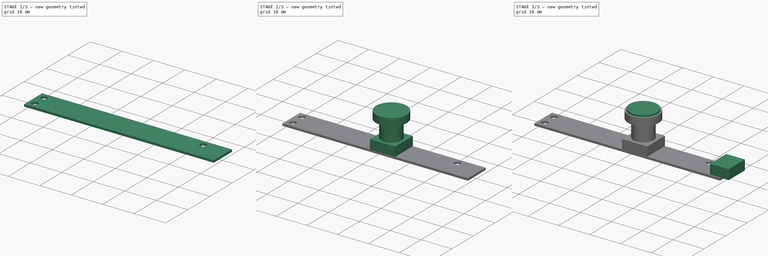
[diagram: build sequence overview — one tinted view per stage of 3, left to right]
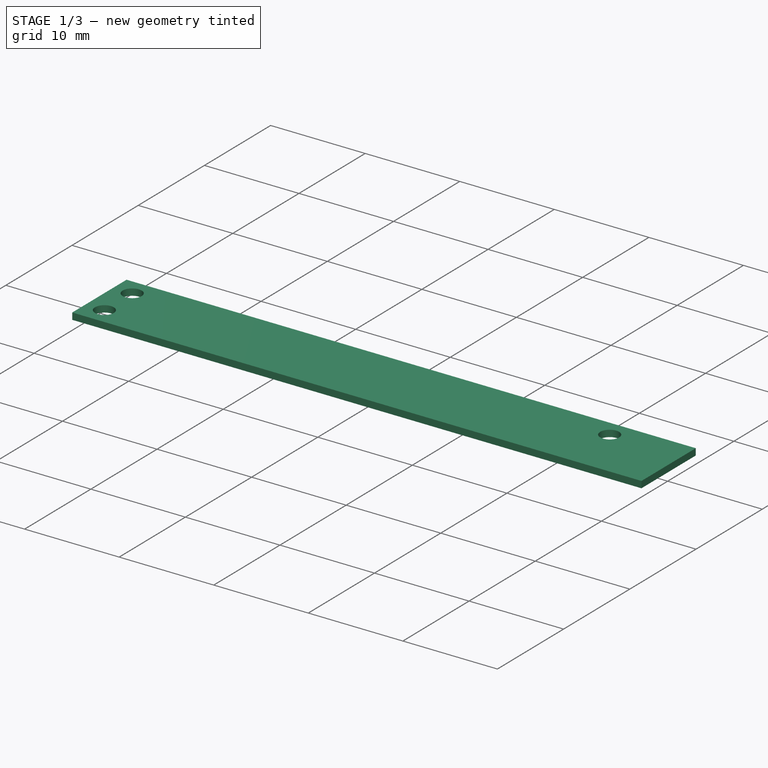
[diagram: stage 1 of 3 — iso view after this stage's code; geometry added in this stage tinted green]
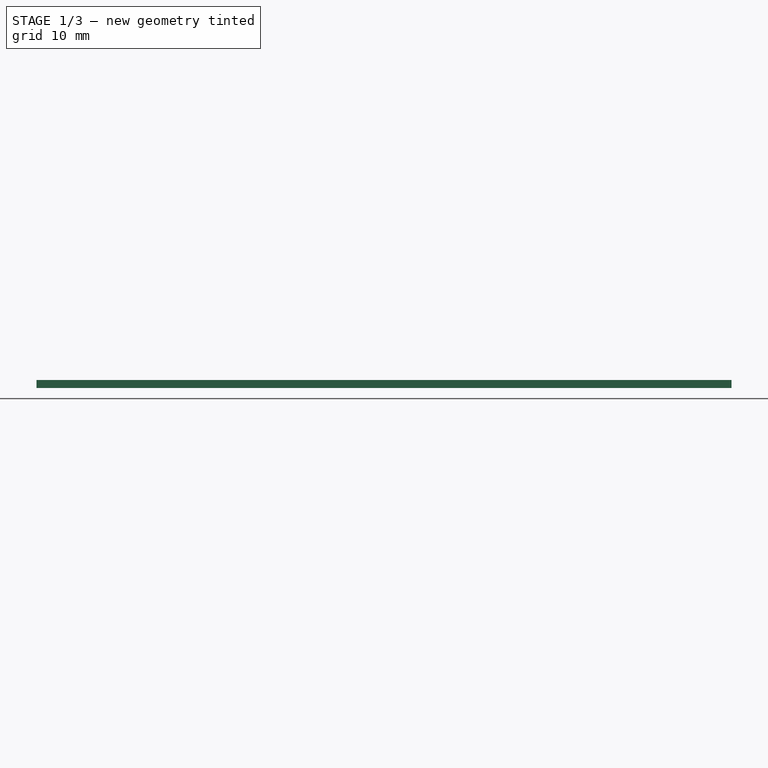
[diagram: stage 1 of 3 — front view after this stage's code; geometry added in this stage tinted green]
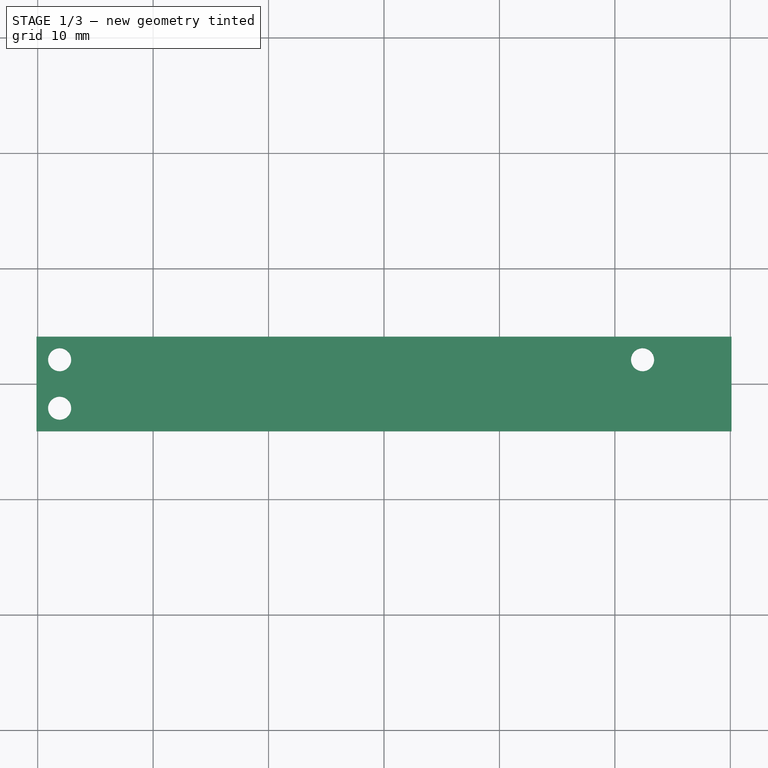
[diagram: stage 1 of 3 — top view after this stage's code; geometry added in this stage tinted green]
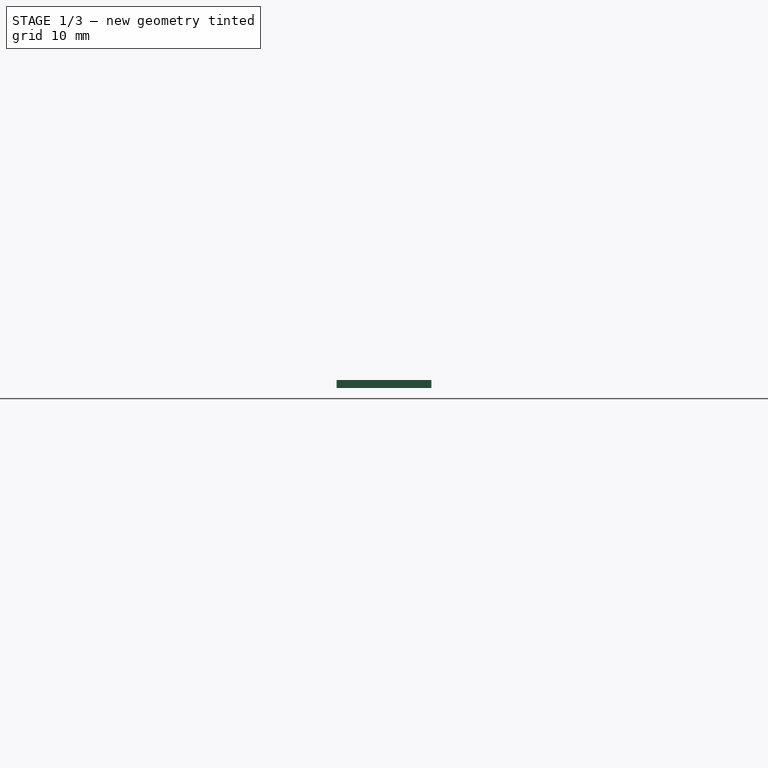
[diagram: stage 1 of 3 — right view after this stage's code; geometry added in this stage tinted green]
FCSTD DOCUMENT  (FreeCAD 0.16R4928 (Git))
Label: delock_95953
License: All rights reserved
LicenseURL: http://en.wikipedia.org/wiki/All_rights_reserved
objects: Sketcher::SketchObject×7, PartDesign::Pad×6, PartDesign::Pocket×1
note: 21 computed .brp shape members not serialized (recipe doc carries the construction recipe); baked Part::Feature solids carry a one-line shape summary decoded from their .brp

FEATURE [Sketcher::SketchObject] Sketch
  sketch-geometry (4):
    g0: LineSegment StartX=-30.1 StartY=4.1 StartZ=0 EndX=30.1 EndY=4.1 EndZ=0
    g1: LineSegment StartX=30.1 StartY=4.1 StartZ=0 EndX=30.1 EndY=-4.1 EndZ=0
    g2: LineSegment StartX=30.1 StartY=-4.1 StartZ=0 EndX=-30.1 EndY=-4.1 EndZ=0
    g3: LineSegment StartX=-30.1 StartY=-4.1 StartZ=0 EndX=-30.1 EndY=4.1 EndZ=0
  constraints (12):
    c: Coincident(g0,g1)
    c: Coincident(g1,g2)
    c: Coincident(g2,g3)
    c: Coincident(g3,g0)
    c: Horizontal(g0)
    c: Horizontal(g2)
    c: Vertical(g1)
    c: Vertical(g3)
    c: Distance(g3) = 8.2
    c: Distance(g0) = 60.2
    c: DistanceY(g-1,g0) = 4.1
    c: DistanceX(g-1,g0) = 30.1
FEATURE [PartDesign::Pad] Pad
  Length = 0.7
  Length2 = 100
  Sketch = -> Sketch
  Type = 0
FEATURE [Sketcher::SketchObject] Sketch001
  ExternalGeometry = -> [Pad]
  Placement = pos=(0,0,0.7) rot=(0,0,1;0rad)
  Support = -> Pad [Face6]
  sketch-geometry (3):
    g0: Circle CenterX=-28.1 CenterY=2.1 CenterZ=0 NormalX=0 NormalY=0 NormalZ=1 Radius=1
    g1: Circle CenterX=-28.1 CenterY=-2.1 CenterZ=0 NormalX=0 NormalY=0 NormalZ=1 Radius=1
    g2: Circle CenterX=22.4 CenterY=2.1 CenterZ=0 NormalX=0 NormalY=0 NormalZ=1 Radius=1
  constraints (9):
    c: Radius(g0) = 1
    c: DistanceY(g-4,g0) = -2
    c: DistanceX(g-4,g0) = 2
    c: Radius(g1) = 1
    c: DistanceY(g1,g-4) = -2
    c: DistanceX(g1,g-4) = -2
    c: DistanceX(g-3,g2) = -7.7
    c: DistanceY(g2,g-3) = 2
    c: Equal(g0,g2)
FEATURE [PartDesign::Pocket] Pocket
  Length = 5
  Sketch = -> Sketch001
  Type = 1
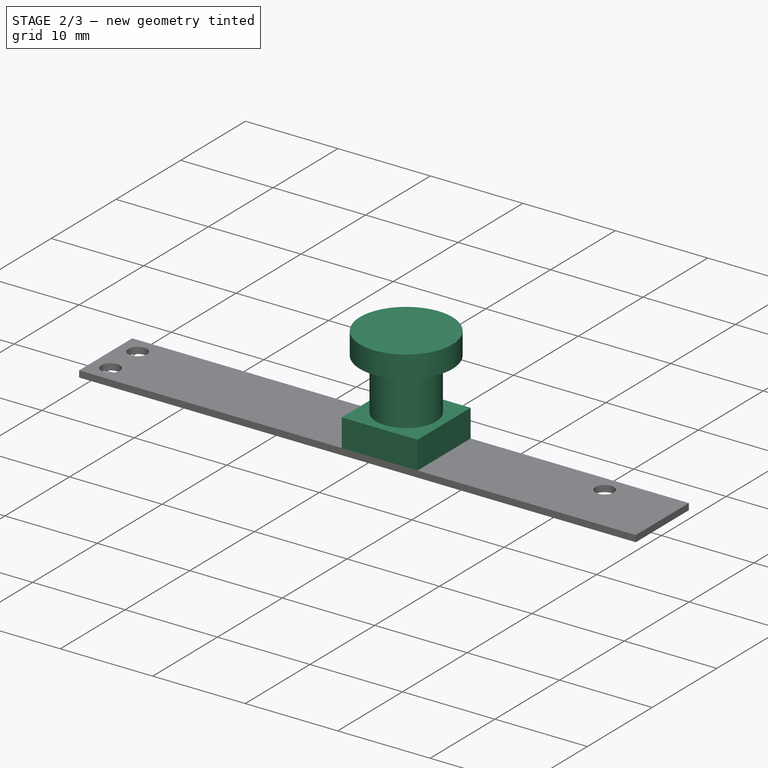
[diagram: stage 2 of 3 — iso view after this stage's code; geometry added in this stage tinted green]
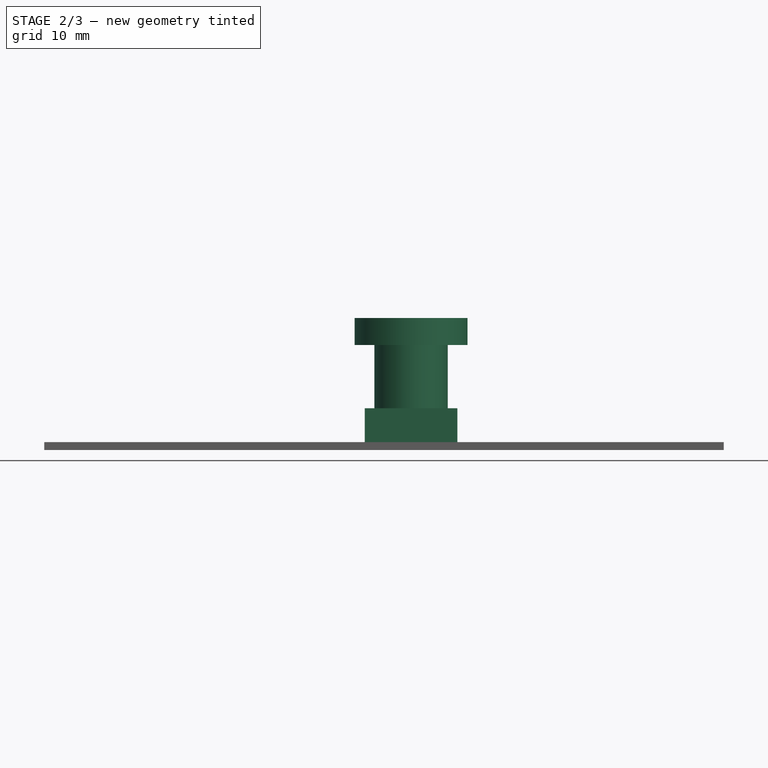
[diagram: stage 2 of 3 — front view after this stage's code; geometry added in this stage tinted green]
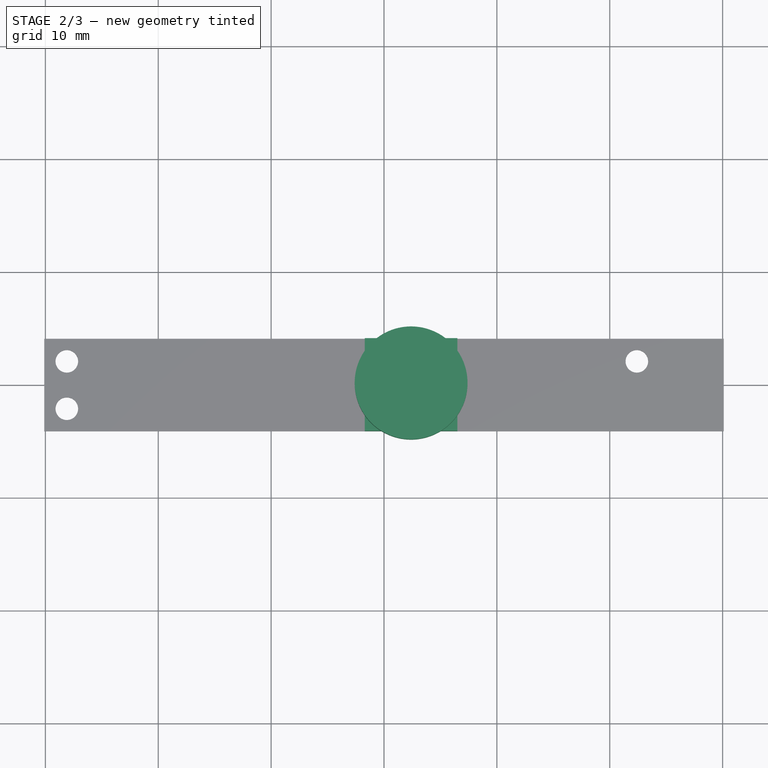
[diagram: stage 2 of 3 — top view after this stage's code; geometry added in this stage tinted green]
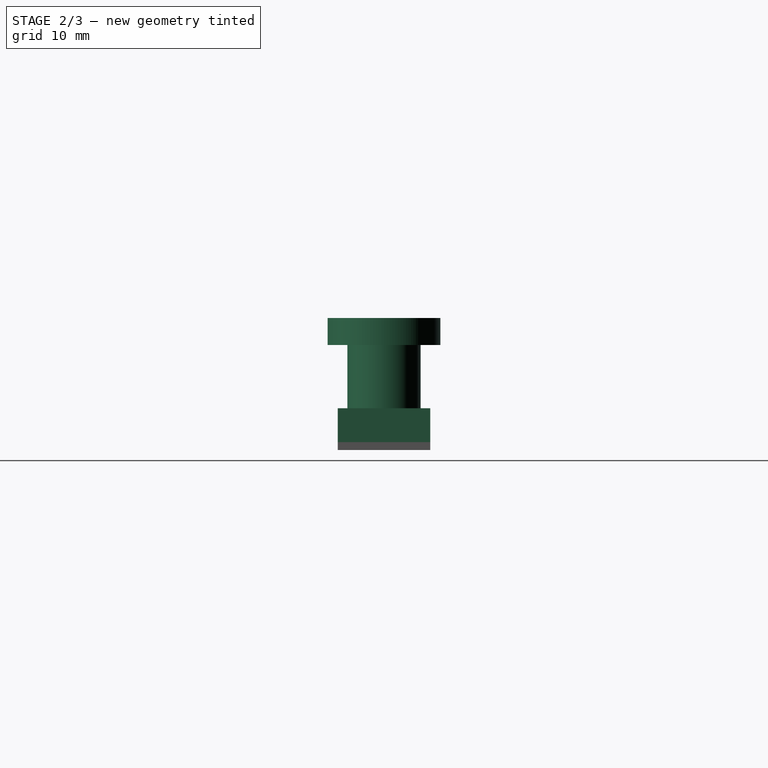
[diagram: stage 2 of 3 — right view after this stage's code; geometry added in this stage tinted green]
FEATURE [Sketcher::SketchObject] Sketch002
  ExternalGeometry = -> [Pocket]
  Placement = pos=(0,0,0.7) rot=(0,0,1;0rad)
  Support = -> Pocket [Face5]
  sketch-geometry (4):
    g0: LineSegment StartX=-1.7 StartY=-4.1 StartZ=0 EndX=6.5 EndY=-4.1 EndZ=0
    g1: LineSegment StartX=6.5 StartY=-4.1 StartZ=0 EndX=6.5 EndY=4.1 EndZ=0
    g2: LineSegment StartX=6.5 StartY=4.1 StartZ=0 EndX=-1.7 EndY=4.1 EndZ=0
    g3: LineSegment StartX=-1.7 StartY=4.1 StartZ=0 EndX=-1.7 EndY=-4.1 EndZ=0
  constraints (12):
    c: Coincident(g0,g1)
    c: Coincident(g1,g2)
    c: Coincident(g2,g3)
    c: Coincident(g3,g0)
    c: Horizontal(g0)
    c: Horizontal(g2)
    c: Vertical(g1)
    c: Vertical(g3)
    c: PointOnObject(g0,g-4)
    c: PointOnObject(g1,g-3)
    c: DistanceX(g2,g1) = 8.2
    c: DistanceX(g0,g-4) = 23.6
FEATURE [PartDesign::Pad] Pad001
  Length = 3
  Length2 = 100
  Sketch = -> Sketch002
  Type = 0
FEATURE [Sketcher::SketchObject] Sketch003
  ExternalGeometry = -> [Pad001]
  Placement = pos=(0,0,3.7) rot=(0,0,1;0rad)
  Support = -> Pad001 [Face15]
  sketch-geometry (3):
    g0: LineSegment [constr] StartX=-1.7 StartY=4.1 StartZ=0 EndX=6.5 EndY=-4.1 EndZ=0
    g1: GeomPoint [constr] X=2.4 Y=0 Z=0
    g2: Circle CenterX=2.4 CenterY=0 CenterZ=0 NormalX=0 NormalY=0 NormalZ=1 Radius=3.25
  constraints (6):
    c: Coincident(g0,g-3)
    c: Coincident(g0,g-4)
    c: PointOnObject(g1,g0)
    c: PointOnObject(g1,g-1)
    c: Coincident(g2,g1)
    c: Radius(g2) = 3.25
FEATURE [PartDesign::Pad] Pad002
  Length = 5.6
  Length2 = 100
  Sketch = -> Sketch003
  Type = 0
FEATURE [Sketcher::SketchObject] Sketch004
  ExternalGeometry = -> [Pad002]
  Placement = pos=(0,0,9.3) rot=(0,0,1;0rad)
  Support = -> Pad002 [Face17]
  sketch-geometry (1):
    g0: Circle CenterX=2.4 CenterY=0 CenterZ=0 NormalX=0 NormalY=0 NormalZ=1 Radius=5
  constraints (2):
    c: Coincident(g0,g-3)
    c: Radius(g0) = 5
FEATURE [PartDesign::Pad] Pad003
  Length = 2.4
  Length2 = 100
  Sketch = -> Sketch004
  Type = 0
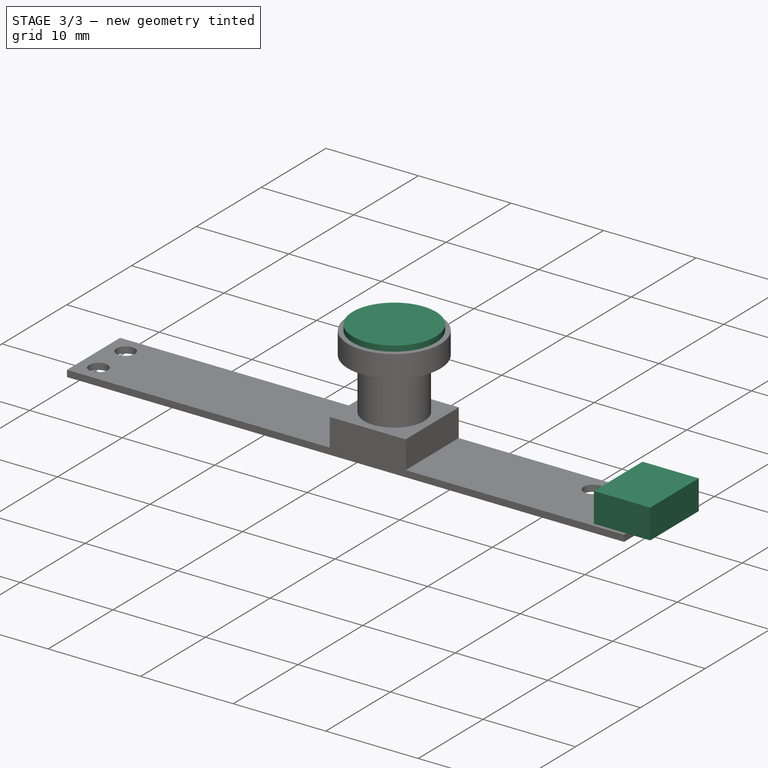
[diagram: stage 3 of 3 — iso view after this stage's code; geometry added in this stage tinted green]
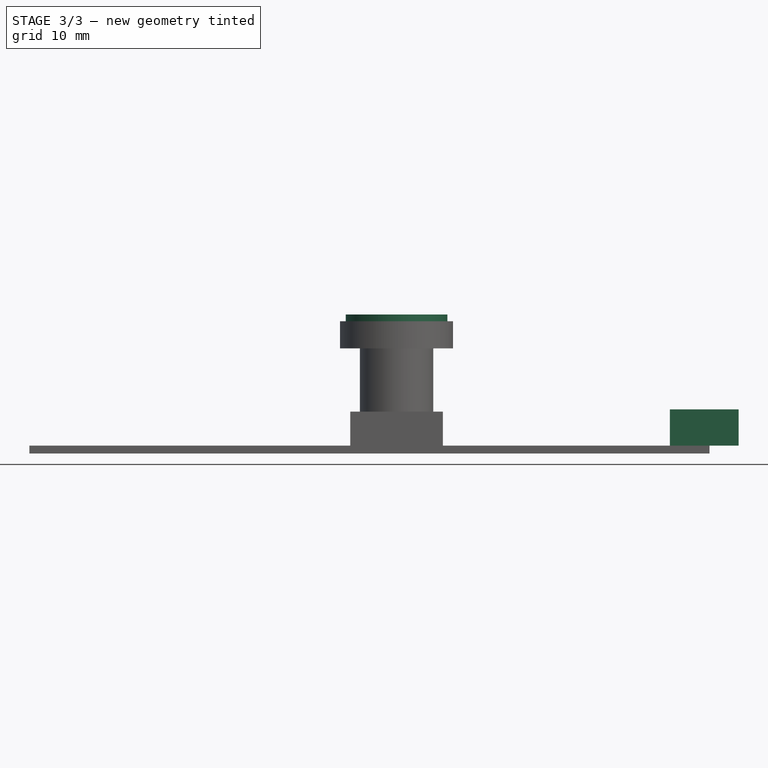
[diagram: stage 3 of 3 — front view after this stage's code; geometry added in this stage tinted green]
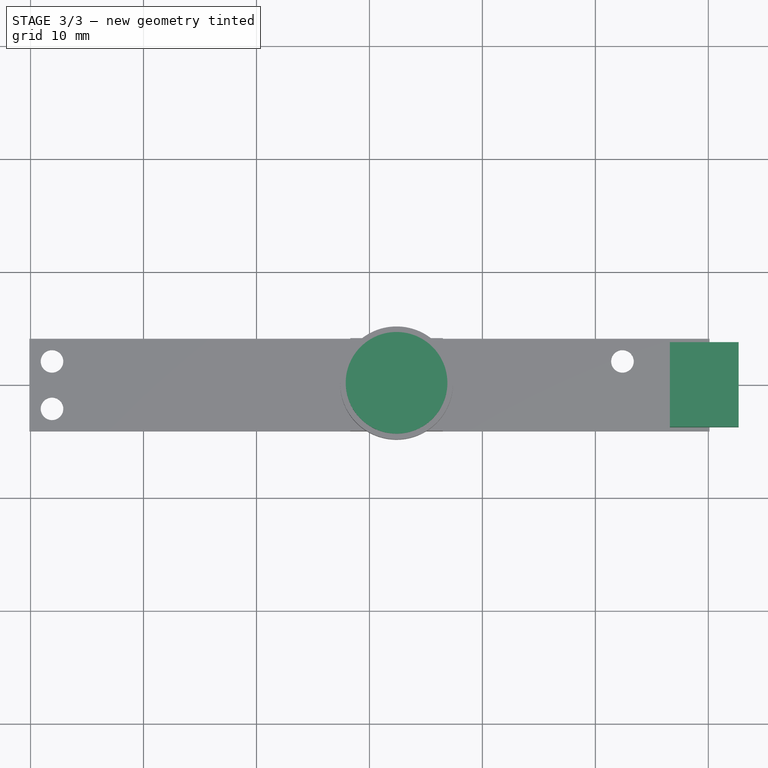
[diagram: stage 3 of 3 — top view after this stage's code; geometry added in this stage tinted green]
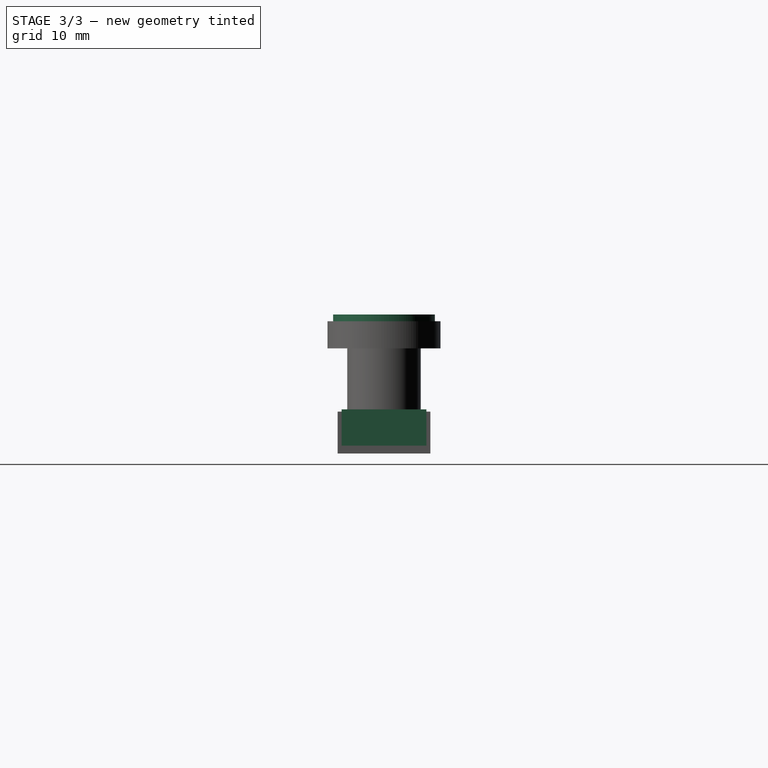
[diagram: stage 3 of 3 — right view after this stage's code; geometry added in this stage tinted green]
FEATURE [Sketcher::SketchObject] Sketch005
  ExternalGeometry = -> [Pad003]
  Placement = pos=(0,0,11.7) rot=(0,0,1;0rad)
  Support = -> Pad003 [Face19]
  sketch-geometry (1):
    g0: Circle CenterX=2.4 CenterY=0 CenterZ=0 NormalX=0 NormalY=0 NormalZ=1 Radius=4.5
  constraints (2):
    c: Coincident(g0,g-3)
    c: Radius(g0) = 4.5
FEATURE [PartDesign::Pad] Pad004
  Length = 0.6
  Length2 = 100
  Sketch = -> Sketch005
  Type = 0
FEATURE [Sketcher::SketchObject] Sketch006
  ExternalGeometry = -> [Pad004]
  Placement = pos=(0,0,0.7) rot=(0,0,1;0rad)
  Support = -> Pad004 [Face7]
  sketch-geometry (7):
    g0: LineSegment StartX=26.6 StartY=3.75 StartZ=0 EndX=32.68 EndY=3.75 EndZ=0
    g1: LineSegment StartX=32.68 StartY=3.75 StartZ=0 EndX=32.68 EndY=-3.75 EndZ=0
    g2: LineSegment StartX=32.68 StartY=-3.75 StartZ=0 EndX=26.6 EndY=-3.75 EndZ=0
    g3: LineSegment StartX=26.6 StartY=-3.75 StartZ=0 EndX=26.6 EndY=3.75 EndZ=0
    g4: LineSegment [constr] StartX=26.6 StartY=3.75 StartZ=0 EndX=32.68 EndY=-3.75 EndZ=0
    g5: GeomPoint [constr] X=29.64 Y=0 Z=0
    g6: LineSegment [constr] StartX=26.6 StartY=-3.75 StartZ=0 EndX=32.68 EndY=3.75 EndZ=0
  constraints (18):
    c: Coincident(g0,g1)
    c: Coincident(g1,g2)
    c: Coincident(g2,g3)
    c: Coincident(g3,g0)
    c: Horizontal(g0)
    c: Horizontal(g2)
    c: Vertical(g1)
    c: Vertical(g3)
    c: Coincident(g4,g0)
    c: Coincident(g4,g1)
    c: PointOnObject(g5,g4)
    c: PointOnObject(g5,g-1)
    c: Distance(g1) = 7.5
    c: DistanceX(g2) = -6.08
    c: DistanceX(g1,g-5) = -2.58
    c: Coincident(g6,g2)
    c: Coincident(g6,g0)
    c: PointOnObject(g5,g6)
FEATURE [PartDesign::Pad] Pad005
  Length = 3.2
  Length2 = 100
  Sketch = -> Sketch006
  Type = 0
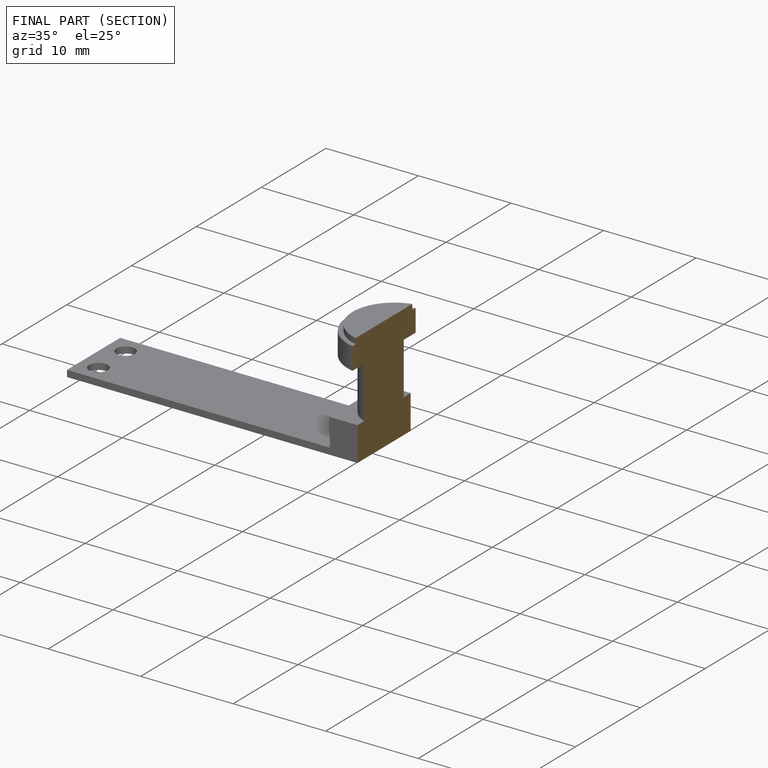
[diagram: finished part — half-section view (interior)]
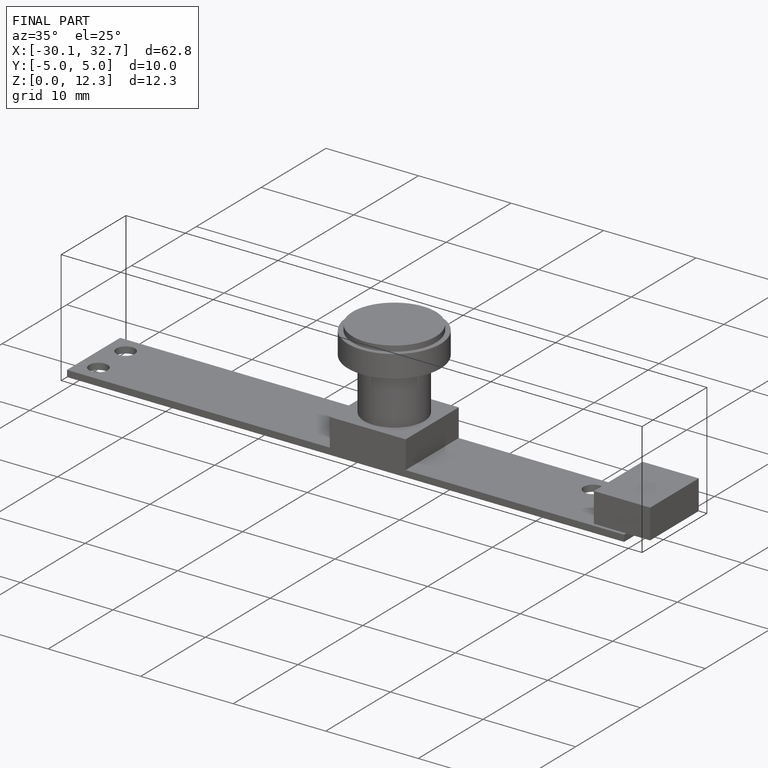
[diagram: finished part — iso view with bounding-box wireframe]
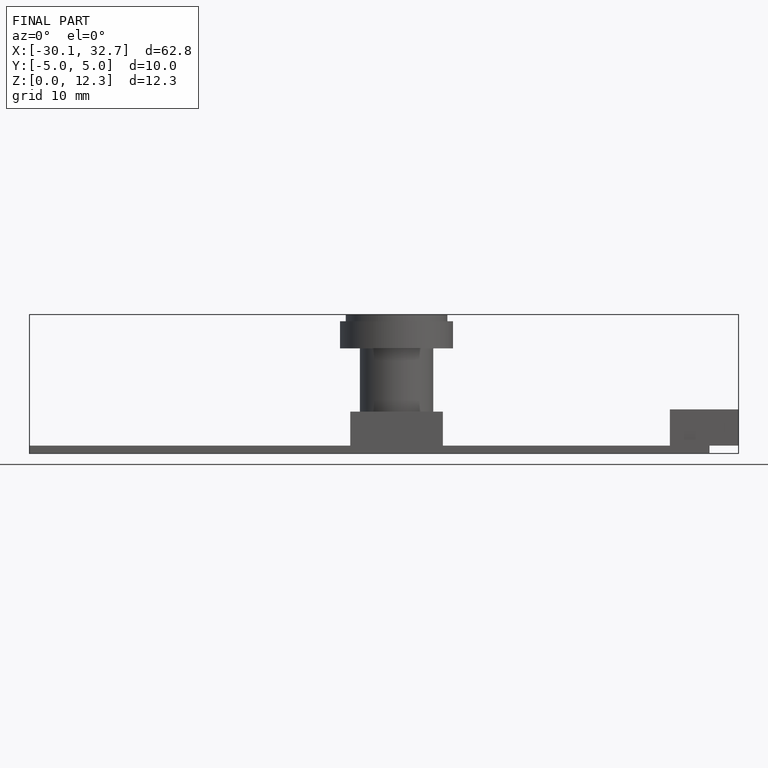
[diagram: finished part — front view with bounding-box wireframe]
